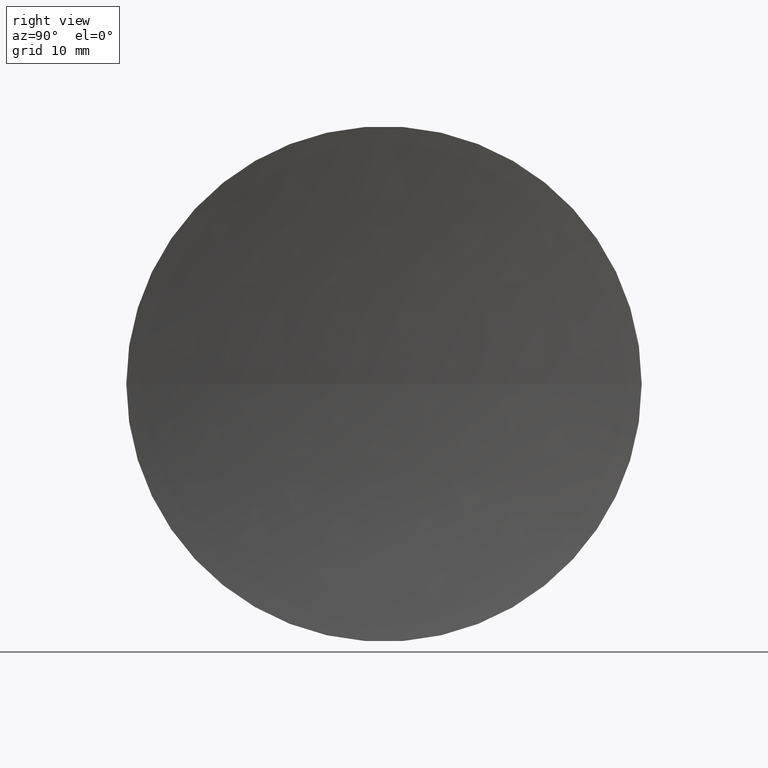
[diagram: clean part render]
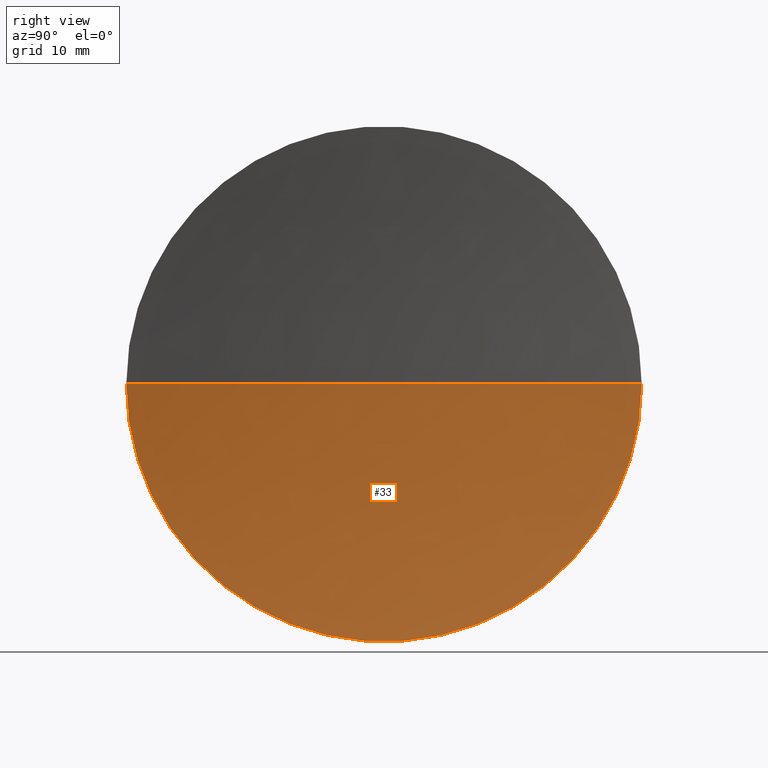
[diagram: same view with one face highlighted and labeled with its STEP entity id]
A machine part, right view. The second image highlights one B-rep face of the part: STEP entity #33.
In plain terms, the highlighted spherical surface has radius 160.5 mm.
Its self-contained STEP definition (entity closure, byte-faithful):
#3 = CARTESIAN_POINT ( 'NONE',  ( 410.6989956717488900, 130.4336809418806000, 0.0000000000000000000 ) ) ;
#15 = VERTEX_POINT ( 'NONE', #89 ) ;
#24 = CARTESIAN_POINT ( 'NONE',  ( 410.6989956717488900, 130.4336809418806000, 0.0000000000000000000 ) ) ;
#28 = ORIENTED_EDGE ( 'NONE', *, *, #145, .T. ) ;
#31 = CIRCLE ( 'NONE', #105, 160.5000000000000600 ) ;
#33 = ADVANCED_FACE ( 'NONE', ( #150 ), #88, .F. ) ;
#37 = CARTESIAN_POINT ( 'NONE',  ( 252.1579915119416200, 130.4336809418806800, 0.0000000000000000000 ) ) ;
#39 = CIRCLE ( 'NONE', #95, 24.99999999999992500 ) ;
#49 = CARTESIAN_POINT ( 'NONE',  ( 252.1579915119416200, 105.4336809418807900, -3.061616997868347100E-015 ) ) ;
#51 = EDGE_CURVE ( 'NONE', #15, #100, #39, .T. ) ;
#61 = ORIENTED_EDGE ( 'NONE', *, *, #80, .F. ) ;
#62 = DIRECTION ( 'NONE',  ( 0.0000000000000000000, 1.000000000000000000, 1.224646799147353000E-016 ) ) ;
#80 = EDGE_CURVE ( 'NONE', #100, #106, #31, .T. ) ;
#81 = DIRECTION ( 'NONE',  ( -6.917277411994742600E-016, 1.000000000000000000, 0.0000000000000000000 ) ) ;
#83 = DIRECTION ( 'NONE',  ( 1.000000000000000000, 0.0000000000000000000, 0.0000000000000000000 ) ) ;
#88 = SPHERICAL_SURFACE ( 'NONE', #184, 160.5000000000000300 ) ;
#89 = CARTESIAN_POINT ( 'NONE',  ( 252.1579915119416200, 155.4336809418803700, 0.0000000000000000000 ) ) ;
#94 = CARTESIAN_POINT ( 'NONE',  ( 410.6989956717488900, 130.4336809418806000, 0.0000000000000000000 ) ) ;
#95 = AXIS2_PLACEMENT_3D ( 'NONE', #37, #166, #110 ) ;
#96 = EDGE_LOOP ( 'NONE', ( #61, #111, #28 ) ) ;
#99 = DIRECTION ( 'NONE',  ( 0.0000000000000000000, -0.0000000000000000000, 1.000000000000000000 ) ) ;
#100 = VERTEX_POINT ( 'NONE', #49 ) ;
#105 = AXIS2_PLACEMENT_3D ( 'NONE', #94, #136, #62 ) ;
#106 = VERTEX_POINT ( 'NONE', #165 ) ;
#110 = DIRECTION ( 'NONE',  ( 0.0000000000000000000, -1.000000000000000000, 0.0000000000000000000 ) ) ;
#111 = ORIENTED_EDGE ( 'NONE', *, *, #51, .F. ) ;
#117 = AXIS2_PLACEMENT_3D ( 'NONE', #24, #99, #83 ) ;
#136 = DIRECTION ( 'NONE',  ( -8.496118506040342700E-032, 1.224646799147353200E-016, -1.000000000000000000 ) ) ;
#145 = EDGE_CURVE ( 'NONE', #15, #106, #190, .T. ) ;
#150 = FACE_OUTER_BOUND ( 'NONE', #96, .T. ) ;
#165 = CARTESIAN_POINT ( 'NONE',  ( 250.1989956717488600, 130.4336809418804800, 0.0000000000000000000 ) ) ;
#166 = DIRECTION ( 'NONE',  ( -1.000000000000000000, -6.937607244762875000E-016, -0.0000000000000000000 ) ) ;
#184 = AXIS2_PLACEMENT_3D ( 'NONE', #3, #185, #81 ) ;
#185 = DIRECTION ( 'NONE',  ( 0.0000000000000000000, 0.0000000000000000000, -1.000000000000000000 ) ) ;
#190 = CIRCLE ( 'NONE', #117, 160.5000000000000300 ) ;